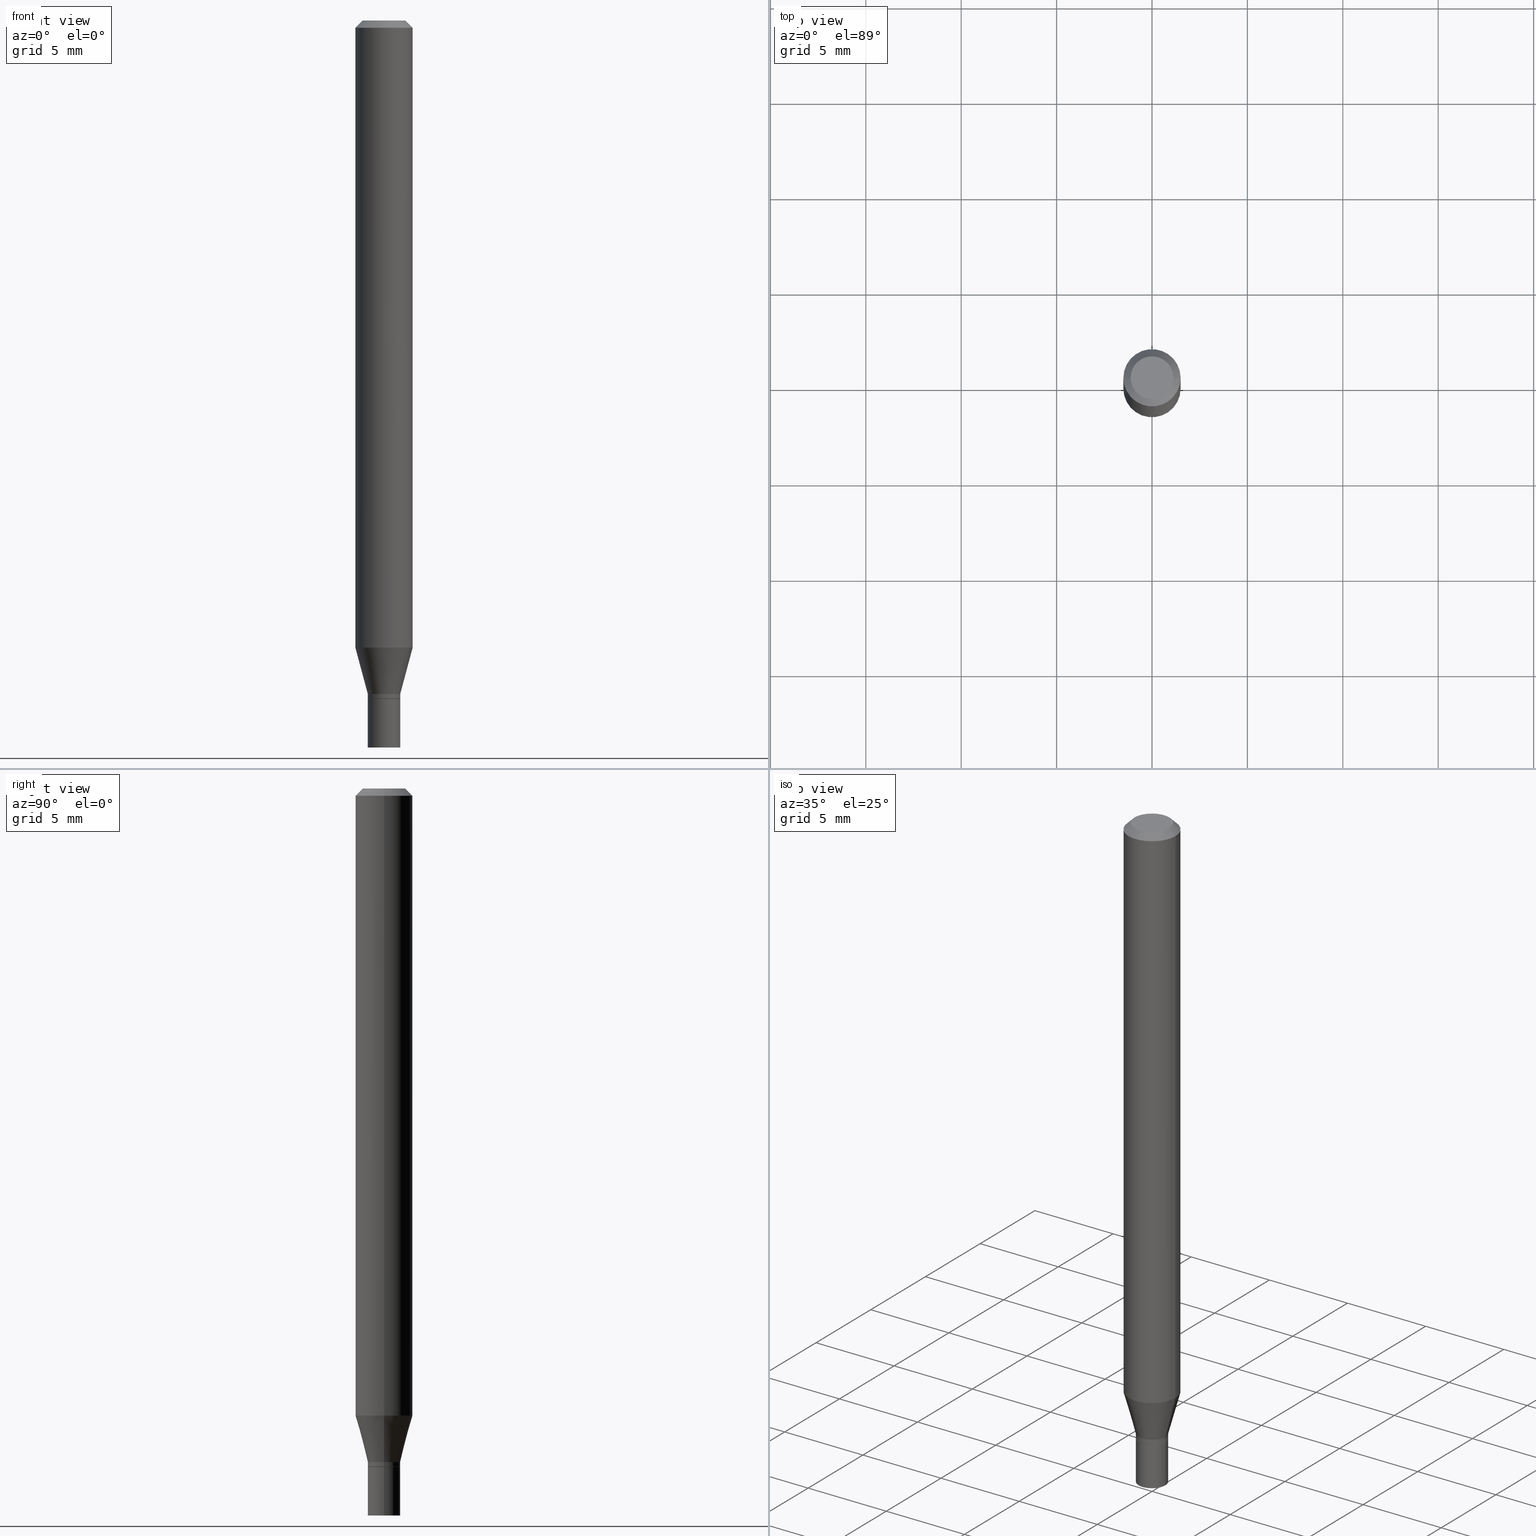
[diagram: canonical four-view strip — front | top / right | iso, engineering-drawing reading convention]
A machine part, canonical four-view strip (front | top / right | iso — engineering-drawing reading convention). The complete STEP part file that produces these views, byte-faithful:
ISO-10303-21;
HEADER;
FILE_DESCRIPTION (( 'STEP AP203' ),
    '1' );
FILE_NAME ('09295.STEP',
    '2024-03-14T18:24:27',
    ( '' ),
    ( '' ),
    'SwSTEP 2.0',
    'SolidWorks 2023',
    '' );
FILE_SCHEMA (( 'CONFIG_CONTROL_DESIGN' ));
ENDSEC;

DATA;
#1 = AXIS2_PLACEMENT_3D ( 'NONE', #96, #168, #463 ) ;
#2 = SECURITY_CLASSIFICATION_LEVEL ( 'unclassified' ) ;
#3 = DIRECTION ( 'NONE',  ( 1.000000000000000000, -6.982962677686273021E-15, 0.000000000000000000 ) ) ;
#4 = DIRECTION ( 'NONE',  ( -2.445468806185136597E-29, 3.491481338843145583E-15, 1.000000000000000000 ) ) ;
#5 = EDGE_CURVE ( 'NONE', #395, #404, #40, .T. ) ;
#6 = APPROVAL_DATE_TIME ( #75, #32 ) ;
#7 = FACE_OUTER_BOUND ( 'NONE', #211, .T. ) ;
#8 = AXIS2_PLACEMENT_3D ( 'NONE', #327, #4, #221 ) ;
#9 = VECTOR ( 'NONE', #447, 39.37007874015748143 ) ;
#10 = EDGE_CURVE ( 'NONE', #417, #196, #193, .T. ) ;
#11 = COORDINATED_UNIVERSAL_TIME_OFFSET ( 5, 0, .BEHIND. ) ;
#12 = DIRECTION ( 'NONE',  ( -2.445468806185136597E-29, 3.491481338843145583E-15, 1.000000000000000000 ) ) ;
#13 = COORDINATED_UNIVERSAL_TIME_OFFSET ( 5, 0, .BEHIND. ) ;
#14 = CARTESIAN_POINT ( 'NONE',  ( 0.000000000000000000, 0.000000000000000000, 0.000000000000000000 ) ) ;
#15 = ORIENTED_EDGE ( 'NONE', *, *, #5, .F. ) ;
#16 = CYLINDRICAL_SURFACE ( 'NONE', #430, 0.05904999999999999832 ) ;
#17 = EDGE_LOOP ( 'NONE', ( #300, #409, #121, #144 ) ) ;
#18 = AXIS2_PLACEMENT_3D ( 'NONE', #396, #77, #265 ) ;
#19 = DIRECTION ( 'NONE',  ( -2.445468806185136597E-29, 3.491481338843145583E-15, 1.000000000000000000 ) ) ;
#20 = PRODUCT_DEFINITION_SHAPE ( 'NONE', 'NONE',  #362 ) ;
#21 = EDGE_CURVE ( 'NONE', #190, #169, #437, .T. ) ;
#22 = FACE_OUTER_BOUND ( 'NONE', #246, .T. ) ;
#23 = ORIENTED_EDGE ( 'NONE', *, *, #170, .T. ) ;
#24 = DIRECTION ( 'NONE',  ( -2.445468806185136877E-29, 3.491481338843145188E-15, 1.000000000000000000 ) ) ;
#25 = EDGE_LOOP ( 'NONE', ( #420, #419 ) ) ;
#26 = EDGE_CURVE ( 'NONE', #274, #416, #400, .T. ) ;
#27 = DIRECTION ( 'NONE',  ( 1.000000000000000000, -6.982962677686265922E-15, 4.876176775795935793E-29 ) ) ;
#28 = ORIENTED_EDGE ( 'NONE', *, *, #179, .T. ) ;
#29 = CARTESIAN_POINT ( 'NONE',  ( -0.03345000000000000057, -4.824273099943039539E-15, -1.500000000000000222 ) ) ;
#30 = ORIENTED_EDGE ( 'NONE', *, *, #21, .F. ) ;
#31 = DIRECTION ( 'NONE',  ( 2.445468806185136597E-29, -3.491481338843145583E-15, -1.000000000000000000 ) ) ;
#32 = APPROVAL ( #436, 'UNSPECIFIED' ) ;
#33 = DIRECTION ( 'NONE',  ( 1.000000000000000000, -6.982962677686265922E-15, 4.876176775795935793E-29 ) ) ;
#34 = AXIS2_PLACEMENT_3D ( 'NONE', #116, #44, #284 ) ;
#35 = ORIENTED_EDGE ( 'NONE', *, *, #99, .F. ) ;
#36 = DIRECTION ( 'NONE',  ( -1.000000000000000000, 6.982962677686265922E-15, -4.876176775795935793E-29 ) ) ;
#37 = DATE_TIME_ROLE ( 'creation_date' ) ;
#38 = DIRECTION ( 'NONE',  ( 1.000000000000000000, -6.982962677686267499E-15, 4.876176775795936353E-29 ) ) ;
#39 = VECTOR ( 'NONE', #100, 39.37007874015748143 ) ;
#40 = CIRCLE ( 'NONE', #113, 0.03345000000000020179 ) ;
#41 = DIRECTION ( 'NONE',  ( 1.000000000000000000, 0.000000000000000000, 0.000000000000000000 ) ) ;
#42 = LINE ( 'NONE', #323, #264 ) ;
#43 = ORIENTED_EDGE ( 'NONE', *, *, #90, .F. ) ;
#44 = DIRECTION ( 'NONE',  ( -2.445468806185136597E-29, 3.491481338843145583E-15, 1.000000000000000000 ) ) ;
#45 = CARTESIAN_POINT ( 'NONE',  ( 0.000000000000000000, 0.000000000000000000, 0.000000000000000000 ) ) ;
#46 = DIRECTION ( 'NONE',  ( 1.000000000000000000, -6.982962677686265133E-15, 0.000000000000000000 ) ) ;
#47 = AXIS2_PLACEMENT_3D ( 'NONE', #66, #162, #314 ) ;
#48 = CALENDAR_DATE ( 2024, 14, 3 ) ;
#49 = CARTESIAN_POINT ( 'NONE',  ( -0.03295000000000000012, -4.652553450411914380E-15, -1.399600000000000177 ) ) ;
#50 = DIRECTION ( 'NONE',  ( 1.000000000000000000, -6.982962677686266711E-15, 0.000000000000000000 ) ) ;
#51 = FACE_OUTER_BOUND ( 'NONE', #17, .T. ) ;
#52 = ORIENTED_EDGE ( 'NONE', *, *, #26, .T. ) ;
#53 =( GEOMETRIC_REPRESENTATION_CONTEXT ( 3 ) GLOBAL_UNCERTAINTY_ASSIGNED_CONTEXT ( ( #94 ) ) GLOBAL_UNIT_ASSIGNED_CONTEXT ( ( #279, #426, #352 ) ) REPRESENTATION_CONTEXT ( 'NONE', 'WORKASPACE' ) );
#54 = LINE ( 'NONE', #195, #305 ) ;
#55 = FACE_OUTER_BOUND ( 'NONE', #336, .T. ) ;
#56 = CC_DESIGN_PERSON_AND_ORGANIZATION_ASSIGNMENT ( #261, #319, ( #268 ) ) ;
#57 = DIRECTION ( 'NONE',  ( -2.445468806185136597E-29, 3.491481338843145583E-15, 1.000000000000000000 ) ) ;
#58 = ORIENTED_EDGE ( 'NONE', *, *, #311, .T. ) ;
#59 = CIRCLE ( 'NONE', #184, 0.05904999999999999832 ) ;
#60 = CARTESIAN_POINT ( 'NONE',  ( 0.05904999999999999832, -4.647161662000212105E-16, -0.01499999999999999944 ) ) ;
#61 = EDGE_LOOP ( 'NONE', ( #356, #341 ) ) ;
#62 = EDGE_CURVE ( 'NONE', #280, #416, #126, .T. ) ;
#63 = EDGE_CURVE ( 'NONE', #83, #92, #232, .T. ) ;
#64 = CARTESIAN_POINT ( 'NONE',  ( 4.935362355770148873E-45, -7.046389437484354328E-31, -2.018166146011560548E-16 ) ) ;
#65 = ORIENTED_EDGE ( 'NONE', *, *, #63, .T. ) ;
#66 = CARTESIAN_POINT ( 'NONE',  ( 3.422678141136717667E-29, -4.886677281844866849E-15, -1.399600000000000177 ) ) ;
#67 = CLOSED_SHELL ( 'NONE', ( #344, #72, #453, #391, #324, #353, #347, #244, #451, #402, #76, #146 ) ) ;
#68 = AXIS2_PLACEMENT_3D ( 'NONE', #194, #338, #267 ) ;
#69 = PLANE ( 'NONE',  #153 ) ;
#70 = CALENDAR_DATE ( 2024, 14, 3 ) ;
#71 = EDGE_LOOP ( 'NONE', ( #438, #461, #401, #220 ) ) ;
#72 = ADVANCED_FACE ( 'NONE', ( #7 ), #349, .T. ) ;
#73 = CARTESIAN_POINT ( 'NONE',  ( 0.05904999999999999832, -4.930528539367636810E-15, -1.294059499326237761 ) ) ;
#74 = CIRCLE ( 'NONE', #34, 0.03345000000000020179 ) ;
#75 = DATE_AND_TIME ( #70, #375 ) ;
#76 = ADVANCED_FACE ( 'NONE', ( #399 ), #358, .T. ) ;
#77 = DIRECTION ( 'NONE',  ( -2.445468806185136597E-29, 3.491481338843145583E-15, 1.000000000000000000 ) ) ;
#78 = LINE ( 'NONE', #406, #176 ) ;
#79 = CARTESIAN_POINT ( 'NONE',  ( 0.03295000000000000012, -5.116765902074629697E-15, -1.399600000000000177 ) ) ;
#80 = AXIS2_PLACEMENT_3D ( 'NONE', #189, #335, #408 ) ;
#81 = CARTESIAN_POINT ( 'NONE',  ( 0.03345000000000000057, -5.470802109833324821E-15, -1.500000000000000222 ) ) ;
#82 = DIRECTION ( 'NONE',  ( -2.438088387897960049E-29, 3.491481338843145188E-15, 1.000000000000000000 ) ) ;
#83 = VERTEX_POINT ( 'NONE', #224 ) ;
#84 = CARTESIAN_POINT ( 'NONE',  ( 0.03345000000000020179, -5.085342570025042633E-15, -1.389600000000000168 ) ) ;
#85 = AXIS2_PLACEMENT_3D ( 'NONE', #149, #332, #359 ) ;
#86 = EDGE_LOOP ( 'NONE', ( #181, #108, #132, #15 ) ) ;
#87 = CC_DESIGN_APPROVAL ( #32, ( #460 ) ) ;
#88 = CARTESIAN_POINT ( 'NONE',  ( 3.398223453074866122E-29, -4.851762468456435200E-15, -1.389600000000000168 ) ) ;
#89 = EDGE_LOOP ( 'NONE', ( #310, #238 ) ) ;
#90 = EDGE_CURVE ( 'NONE', #190, #441, #78, .T. ) ;
#91 = CARTESIAN_POINT ( 'NONE',  ( 0.03345000000000000057, -5.120257383413471916E-15, -1.399599999999999955 ) ) ;
#92 = VERTEX_POINT ( 'NONE', #73 ) ;
#93 = DIRECTION ( 'NONE',  ( 1.000000000000000000, -6.982962677686279332E-15, 0.000000000000000000 ) ) ;
#94 = UNCERTAINTY_MEASURE_WITH_UNIT (LENGTH_MEASURE( 1.000000000000000082E-05 ), #279, 'distance_accuracy_value', 'NONE');
#95 = LOCAL_TIME ( 14, 24, 27.00000000000000000, #11 ) ;
#96 = CARTESIAN_POINT ( 'NONE',  ( 0.000000000000000000, 0.000000000000000000, 0.000000000000000000 ) ) ;
#97 = FACE_OUTER_BOUND ( 'NONE', #360, .T. ) ;
#98 = CARTESIAN_POINT ( 'NONE',  ( 0.000000000000000000, 0.000000000000000000, 0.000000000000000000 ) ) ;
#99 = EDGE_CURVE ( 'NONE', #395, #83, #434, .T. ) ;
#100 = DIRECTION ( 'NONE',  ( -2.445468806185136877E-29, 3.491481338843145188E-15, 1.000000000000000000 ) ) ;
#101 = AXIS2_PLACEMENT_3D ( 'NONE', #191, #127, #230 ) ;
#102 = CC_DESIGN_SECURITY_CLASSIFICATION ( #460, ( #216 ) ) ;
#103 = EDGE_CURVE ( 'NONE', #404, #395, #74, .T. ) ;
#104 = EDGE_CURVE ( 'NONE', #416, #404, #42, .T. ) ;
#105 = DATE_AND_TIME ( #328, #351 ) ;
#106 = LINE ( 'NONE', #217, #208 ) ;
#107 = APPLICATION_PROTOCOL_DEFINITION ( 'international standard', 'config_control_design', 1994, #334 ) ;
#108 = ORIENTED_EDGE ( 'NONE', *, *, #62, .T. ) ;
#109 = CARTESIAN_POINT ( 'NONE',  ( 0.04404999999999999888, -3.798447818264464023E-16, -2.018166146011536389E-16 ) ) ;
#110 = CC_DESIGN_DATE_AND_TIME_ASSIGNMENT ( #141, #293, ( #460 ) ) ;
#111 = AXIS2_PLACEMENT_3D ( 'NONE', #421, #31, #210 ) ;
#112 = ORGANIZATION ( 'UNSPECIFIED', 'UNSPECIFIED', '' ) ;
#113 = AXIS2_PLACEMENT_3D ( 'NONE', #255, #142, #46 ) ;
#114 = PERSON_AND_ORGANIZATION ( #240, #112 ) ;
#115 = DIRECTION ( 'NONE',  ( -2.445468806185136597E-29, 3.491481338843145583E-15, 1.000000000000000000 ) ) ;
#116 = CARTESIAN_POINT ( 'NONE',  ( 3.398223453074866122E-29, -4.851762468456435200E-15, -1.389600000000000168 ) ) ;
#117 = FACE_OUTER_BOUND ( 'NONE', #86, .T. ) ;
#118 = CIRCLE ( 'NONE', #68, 0.03344999999999965362 ) ;
#119 = CC_DESIGN_DATE_AND_TIME_ASSIGNMENT ( #394, #37, ( #362 ) ) ;
#120 = DIRECTION ( 'NONE',  ( -1.000000000000000000, 6.982962677686266711E-15, 0.000000000000000000 ) ) ;
#121 = ORIENTED_EDGE ( 'NONE', *, *, #103, .F. ) ;
#122 = CARTESIAN_POINT ( 'NONE',  ( 2.335801015686397760E-16, 0.03344999999999511558, -1.399599999999999955 ) ) ;
#123 = DIRECTION ( 'NONE',  ( 1.000000000000000000, -6.982962677686273021E-15, 0.000000000000000000 ) ) ;
#124 = CIRCLE ( 'NONE', #329, 0.05904999999999999832 ) ;
#125 = CC_DESIGN_APPROVAL ( #428, ( #216 ) ) ;
#126 = CIRCLE ( 'NONE', #8, 0.03344999999999965362 ) ;
#127 = DIRECTION ( 'NONE',  ( -2.445468806185136597E-29, 3.491481338843145583E-15, 1.000000000000000000 ) ) ;
#128 = ORIENTED_EDGE ( 'NONE', *, *, #272, .T. ) ;
#129 = DIRECTION ( 'NONE',  ( 2.445468806185136597E-29, -3.491481338843145583E-15, -1.000000000000000000 ) ) ;
#130 = CIRCLE ( 'NONE', #80, 0.03345000000000000057 ) ;
#131 = DIRECTION ( 'NONE',  ( -2.445468806185136597E-29, 3.491481338843145583E-15, 1.000000000000000000 ) ) ;
#132 = ORIENTED_EDGE ( 'NONE', *, *, #104, .T. ) ;
#133 = CARTESIAN_POINT ( 'NONE',  ( 3.422678141136717106E-29, -4.886677281844866061E-15, -1.399599999999999955 ) ) ;
#134 = ORIENTED_EDGE ( 'NONE', *, *, #454, .T. ) ;
#135 = CYLINDRICAL_SURFACE ( 'NONE', #1, 0.03345000000000000057 ) ;
#136 = CC_DESIGN_PERSON_AND_ORGANIZATION_ASSIGNMENT ( #283, #148, ( #216 ) ) ;
#137 = CARTESIAN_POINT ( 'NONE',  ( 3.422678141136717106E-29, -4.886677281844866061E-15, -1.399599999999999955 ) ) ;
#138 = CIRCLE ( 'NONE', #318, 0.05904999999999999832 ) ;
#139 = PERSON_AND_ORGANIZATION_ROLE ( 'classification_officer' ) ;
#140 = DIRECTION ( 'NONE',  ( -0.2588190451025209615, 5.211531920934547097E-15, 0.9659258262890682012 ) ) ;
#141 = DATE_AND_TIME ( #256, #95 ) ;
#142 = DIRECTION ( 'NONE',  ( -2.445468806185136597E-29, 3.491481338843145583E-15, 1.000000000000000000 ) ) ;
#143 = APPROVAL_DATE_TIME ( #187, #403 ) ;
#144 = ORIENTED_EDGE ( 'NONE', *, *, #104, .F. ) ;
#145 = CARTESIAN_POINT ( 'NONE',  ( 3.422678141136717667E-29, -4.886677281844866849E-15, -1.399600000000000177 ) ) ;
#146 = ADVANCED_FACE ( 'NONE', ( #117 ), #213, .T. ) ;
#147 = CLOSED_SHELL ( 'NONE', ( #165, #207, #425, #364 ) ) ;
#148 = PERSON_AND_ORGANIZATION_ROLE ( 'creator' ) ;
#149 = CARTESIAN_POINT ( 'NONE',  ( 3.422678141136717667E-29, -4.886677281844866849E-15, -1.399600000000000177 ) ) ;
#150 = DIRECTION ( 'NONE',  ( -2.445468806185136597E-29, 3.491481338843145583E-15, 1.000000000000000000 ) ) ;
#151 = DIMENSIONAL_EXPONENTS ( 1.000000000000000000, 0.000000000000000000, 0.000000000000000000, 0.000000000000000000, 0.000000000000000000, 0.000000000000000000, 0.000000000000000000 ) ;
#152 = CARTESIAN_POINT ( 'NONE',  ( 3.668203209277705088E-31, -5.237222008264718399E-17, -0.01499999999999999944 ) ) ;
#153 = AXIS2_PLACEMENT_3D ( 'NONE', #317, #277, #33 ) ;
#154 = ORIENTED_EDGE ( 'NONE', *, *, #62, .F. ) ;
#155 = PLANE ( 'NONE',  #226 ) ;
#156 = EDGE_CURVE ( 'NONE', #398, #274, #270, .T. ) ;
#157 = DIRECTION ( 'NONE',  ( -1.000000000000000000, 6.982962677686265922E-15, -4.876176775795935793E-29 ) ) ;
#158 = CARTESIAN_POINT ( 'NONE',  ( -0.05904999999999999832, 4.195754854663391478E-16, -2.904631170795521892E-30 ) ) ;
#159 = CONICAL_SURFACE ( 'NONE', #372, 0.05904999999999999832, 0.7853981633974551624 ) ;
#160 = APPROVAL_PERSON_ORGANIZATION ( #114, #403, #225 ) ;
#161 = CARTESIAN_POINT ( 'NONE',  ( 3.576687321579069994E-29, -5.368277968210015545E-15, -1.500000000000000222 ) ) ;
#162 = DIRECTION ( 'NONE',  ( -2.445468806185136597E-29, 3.491481338843145583E-15, 1.000000000000000000 ) ) ;
#163 = ORIENTED_EDGE ( 'NONE', *, *, #63, .F. ) ;
#164 = FACE_OUTER_BOUND ( 'NONE', #89, .T. ) ;
#165 = ADVANCED_FACE ( 'NONE', ( #178 ), #367, .T. ) ;
#166 = ORIENTED_EDGE ( 'NONE', *, *, #303, .T. ) ;
#167 = CIRCLE ( 'NONE', #435, 0.04404999999999999888 ) ;
#168 = DIRECTION ( 'NONE',  ( -2.445468806185136597E-29, 3.491481338843145583E-15, 1.000000000000000000 ) ) ;
#169 = VERTEX_POINT ( 'NONE', #357 ) ;
#170 = EDGE_CURVE ( 'NONE', #398, #280, #295, .T. ) ;
#171 = FACE_OUTER_BOUND ( 'NONE', #445, .T. ) ;
#172 = APPROVAL_ROLE ( '' ) ;
#173 = AXIS2_PLACEMENT_3D ( 'NONE', #292, #150, #227 ) ;
#174 = CC_DESIGN_APPROVAL ( #403, ( #362 ) ) ;
#175 = CARTESIAN_POINT ( 'NONE',  ( 0.05904999999999999832, -4.123439461173740327E-16, 2.879382386107500220E-30 ) ) ;
#176 = VECTOR ( 'NONE', #392, 39.37007874015748143 ) ;
#177 = PERSON_AND_ORGANIZATION_ROLE ( 'design_supplier' ) ;
#178 = FACE_OUTER_BOUND ( 'NONE', #348, .T. ) ;
#179 = EDGE_CURVE ( 'NONE', #92, #441, #188, .T. ) ;
#180 = MECHANICAL_CONTEXT ( 'NONE', #334, 'mechanical' ) ;
#181 = ORIENTED_EDGE ( 'NONE', *, *, #229, .F. ) ;
#182 = DIRECTION ( 'NONE',  ( -2.445468806185136597E-29, 3.491481338843145583E-15, 1.000000000000000000 ) ) ;
#183 = DIRECTION ( 'NONE',  ( 0.000000000000000000, 0.000000000000000000, 1.000000000000000000 ) ) ;
#184 = AXIS2_PLACEMENT_3D ( 'NONE', #340, #234, #123 ) ;
#185 = DIRECTION ( 'NONE',  ( -2.445468806185136597E-29, 3.491481338843145583E-15, 1.000000000000000000 ) ) ;
#186 = EDGE_CURVE ( 'NONE', #169, #385, #106, .T. ) ;
#187 = DATE_AND_TIME ( #219, #209 ) ;
#188 = LINE ( 'NONE', #175, #365 ) ;
#189 = CARTESIAN_POINT ( 'NONE',  ( 3.668203209277704895E-29, -5.237222008264718177E-15, -1.500000000000000222 ) ) ;
#190 = VERTEX_POINT ( 'NONE', #109 ) ;
#191 = CARTESIAN_POINT ( 'NONE',  ( 3.398223453074866122E-29, -4.851762468456435200E-15, -1.389600000000000168 ) ) ;
#192 = CONICAL_SURFACE ( 'NONE', #101, 0.03345000000000020179, 0.2617993877991496299 ) ;
#193 = CIRCLE ( 'NONE', #18, 0.03345000000000000057 ) ;
#194 = CARTESIAN_POINT ( 'NONE',  ( 3.421455406733624865E-29, -4.884931541175446135E-15, -1.399100000000000010 ) ) ;
#195 = CARTESIAN_POINT ( 'NONE',  ( 0.03345000000000000057, -2.335801015686056085E-16, 1.631081131503740528E-30 ) ) ;
#196 = VERTEX_POINT ( 'NONE', #81 ) ;
#197 = ADVANCED_BREP_SHAPE_REPRESENTATION ( '09295', ( #382, #218, #414 ), #53 ) ;
#198 = DIRECTION ( 'NONE',  ( 1.000000000000000000, -6.982962677686267499E-15, 4.876176775795936353E-29 ) ) ;
#199 = ORIENTED_EDGE ( 'NONE', *, *, #288, .T. ) ;
#200 = AXIS2_PLACEMENT_3D ( 'NONE', #133, #383, #247 ) ;
#201 = DIRECTION ( 'NONE',  ( -2.445468806185136597E-29, 3.491481338843145583E-15, 1.000000000000000000 ) ) ;
#202 = CC_DESIGN_PERSON_AND_ORGANIZATION_ASSIGNMENT ( #440, #252, ( #362 ) ) ;
#203 = ORIENTED_EDGE ( 'NONE', *, *, #90, .T. ) ;
#204 = EDGE_CURVE ( 'NONE', #92, #83, #59, .T. ) ;
#205 = APPLICATION_CONTEXT ( 'configuration controlled 3d designs of mechanical parts and assemblies' ) ;
#206 = CARTESIAN_POINT ( 'NONE',  ( -0.05904999999999999832, -1.865702921200115583E-15, -0.01499999999999999944 ) ) ;
#207 = ADVANCED_FACE ( 'NONE', ( #339 ), #376, .F. ) ;
#208 = VECTOR ( 'NONE', #251, 39.37007874015748143 ) ;
#209 = LOCAL_TIME ( 14, 24, 27.00000000000000000, #214 ) ;
#210 = DIRECTION ( 'NONE',  ( -1.000000000000000000, 6.982962677686266711E-15, 0.000000000000000000 ) ) ;
#211 = EDGE_LOOP ( 'NONE', ( #243, #23, #369, #236 ) ) ;
#212 = CARTESIAN_POINT ( 'NONE',  ( 0.03345000000000020179, -5.085342570025042633E-15, -1.389600000000000168 ) ) ;
#213 = CYLINDRICAL_SURFACE ( 'NONE', #422, 0.03344999999999992424 ) ;
#214 = COORDINATED_UNIVERSAL_TIME_OFFSET ( 5, 0, .BEHIND. ) ;
#215 = AXIS2_PLACEMENT_3D ( 'NONE', #439, #115, #433 ) ;
#216 = PRODUCT_DEFINITION_FORMATION_WITH_SPECIFIED_SOURCE ( 'ANY', '', #268, .NOT_KNOWN. ) ;
#217 = CARTESIAN_POINT ( 'NONE',  ( -0.05904999999999999832, 3.599717260347268549E-16, -0.01499999999999999944 ) ) ;
#218 = MANIFOLD_SOLID_BREP ( 'Body-Move/Copy2[2]', #67 ) ;
#219 = CALENDAR_DATE ( 2024, 14, 3 ) ;
#220 = ORIENTED_EDGE ( 'NONE', *, *, #442, .F. ) ;
#221 = DIRECTION ( 'NONE',  ( 1.000000000000000000, -6.982962677686265133E-15, 0.000000000000000000 ) ) ;
#222 = COORDINATED_UNIVERSAL_TIME_OFFSET ( 5, 0, .BEHIND. ) ;
#223 = ORIENTED_EDGE ( 'NONE', *, *, #257, .F. ) ;
#224 = CARTESIAN_POINT ( 'NONE',  ( -0.05904999999999999832, -4.098609107783923974E-15, -1.294059499326237761 ) ) ;
#225 = APPROVAL_ROLE ( '' ) ;
#226 = AXIS2_PLACEMENT_3D ( 'NONE', #122, #231, #157 ) ;
#227 = DIRECTION ( 'NONE',  ( 1.000000000000000000, -6.982962677686264344E-15, 0.000000000000000000 ) ) ;
#228 = CARTESIAN_POINT ( 'NONE',  ( -0.03345000000000000057, -4.824273099943039539E-15, -1.399599999999999955 ) ) ;
#229 = EDGE_CURVE ( 'NONE', #280, #395, #456, .T. ) ;
#230 = DIRECTION ( 'NONE',  ( 1.000000000000000000, -6.982962677686265133E-15, 0.000000000000000000 ) ) ;
#231 = DIRECTION ( 'NONE',  ( 2.438088387897960049E-29, -3.491481338843145188E-15, -1.000000000000000000 ) ) ;
#232 = CIRCLE ( 'NONE', #289, 0.05904999999999999832 ) ;
#233 = ORIENTED_EDGE ( 'NONE', *, *, #170, .F. ) ;
#234 = DIRECTION ( 'NONE',  ( -2.445468806185136597E-29, 3.491481338843145583E-15, 1.000000000000000000 ) ) ;
#235 = DIRECTION ( 'NONE',  ( 1.000000000000000000, -6.982962677686266711E-15, 4.876176775795936353E-29 ) ) ;
#236 = ORIENTED_EDGE ( 'NONE', *, *, #26, .F. ) ;
#237 = FACE_OUTER_BOUND ( 'NONE', #71, .T. ) ;
#238 = ORIENTED_EDGE ( 'NONE', *, *, #21, .T. ) ;
#239 = CIRCLE ( 'NONE', #47, 0.03295000000000000012 ) ;
#240 = PERSON ( 'UNSPECIFIED', 'UNSPECIFIED', 'UNSPECIFIED', ('UNSPECIFIED'), ('UNSPECIFIED'), ('UNSPECIFIED') ) ;
#241 = AXIS2_PLACEMENT_3D ( 'NONE', #287, #12, #363 ) ;
#242 = DIRECTION ( 'NONE',  ( 1.000000000000000000, -6.982962677686266711E-15, 4.876176775795936353E-29 ) ) ;
#243 = ORIENTED_EDGE ( 'NONE', *, *, #397, .T. ) ;
#244 = ADVANCED_FACE ( 'NONE', ( #55 ), #159, .T. ) ;
#245 = CARTESIAN_POINT ( 'NONE',  ( 3.075995059520799729E-16, 0.04404999999999999888, -2.547080602766185685E-16 ) ) ;
#246 = EDGE_LOOP ( 'NONE', ( #297, #412, #313, #309 ) ) ;
#247 = DIRECTION ( 'NONE',  ( 1.000000000000000000, -6.982962677686279332E-15, 0.000000000000000000 ) ) ;
#248 = AXIS2_PLACEMENT_3D ( 'NONE', #98, #131, #242 ) ;
#249 = APPROVAL_PERSON_ORGANIZATION ( #331, #428, #172 ) ;
#250 = PERSON_AND_ORGANIZATION ( #240, #112 ) ;
#251 = DIRECTION ( 'NONE',  ( -0.7071067811865523467, 2.468850131082307548E-15, -0.7071067811865426878 ) ) ;
#252 = PERSON_AND_ORGANIZATION_ROLE ( 'creator' ) ;
#253 = CIRCLE ( 'NONE', #388, 0.03345000000000000057 ) ;
#254 = EDGE_LOOP ( 'NONE', ( #424, #65, #28, #384 ) ) ;
#255 = CARTESIAN_POINT ( 'NONE',  ( 3.398223453074866122E-29, -4.851762468456435200E-15, -1.389600000000000168 ) ) ;
#256 = CALENDAR_DATE ( 2024, 14, 3 ) ;
#257 = EDGE_CURVE ( 'NONE', #196, #326, #54, .T. ) ;
#258 = EDGE_LOOP ( 'NONE', ( #233, #343, #52, #154 ) ) ;
#259 = DIRECTION ( 'NONE',  ( 0.7071067811861793118, -2.468850131078399925E-15, 0.7071067811869157227 ) ) ;
#260 = CC_DESIGN_PERSON_AND_ORGANIZATION_ASSIGNMENT ( #355, #177, ( #216 ) ) ;
#261 = PERSON_AND_ORGANIZATION ( #240, #112 ) ;
#262 = DIRECTION ( 'NONE',  ( -2.445468806185136877E-29, 3.491481338843145188E-15, 1.000000000000000000 ) ) ;
#263 = EDGE_CURVE ( 'NONE', #416, #280, #118, .T. ) ;
#264 = VECTOR ( 'NONE', #262, 39.37007874015748143 ) ;
#265 = DIRECTION ( 'NONE',  ( 1.000000000000000000, -6.982962677686279332E-15, 0.000000000000000000 ) ) ;
#266 = CARTESIAN_POINT ( 'NONE',  ( 3.668203209277705088E-31, -5.237222008264718399E-17, -0.01499999999999999944 ) ) ;
#267 = DIRECTION ( 'NONE',  ( 1.000000000000000000, -6.982962677686265133E-15, 0.000000000000000000 ) ) ;
#268 = PRODUCT ( '09295', '09295', '', ( #180 ) ) ;
#269 = FACE_OUTER_BOUND ( 'NONE', #254, .T. ) ;
#270 = CIRCLE ( 'NONE', #173, 0.03295000000000000012 ) ;
#271 = CYLINDRICAL_SURFACE ( 'NONE', #389, 0.03344999999999992424 ) ;
#272 = EDGE_CURVE ( 'NONE', #441, #385, #138, .T. ) ;
#273 = CARTESIAN_POINT ( 'NONE',  ( 0.03295000000000000012, -5.116765902074629697E-15, -1.399600000000000177 ) ) ;
#274 = VERTEX_POINT ( 'NONE', #273 ) ;
#275 = EDGE_LOOP ( 'NONE', ( #35, #306, #199, #163 ) ) ;
#276 = VECTOR ( 'NONE', #140, 39.37007874015748143 ) ;
#277 = DIRECTION ( 'NONE',  ( -2.438088387897960049E-29, 3.491481338843145188E-15, 1.000000000000000000 ) ) ;
#278 = ORIENTED_EDGE ( 'NONE', *, *, #186, .F. ) ;
#279 =( CONVERSION_BASED_UNIT ( 'INCH', #458 ) LENGTH_UNIT ( ) NAMED_UNIT ( #151 ) );
#280 = VERTEX_POINT ( 'NONE', #308 ) ;
#281 = CARTESIAN_POINT ( 'NONE',  ( -0.03345000000000000057, 2.376765451117535162E-16, -1.645383787690265928E-30 ) ) ;
#282 = VECTOR ( 'NONE', #342, 39.37007874015748143 ) ;
#283 = PERSON_AND_ORGANIZATION ( #240, #112 ) ;
#284 = DIRECTION ( 'NONE',  ( 1.000000000000000000, -6.982962677686265133E-15, 0.000000000000000000 ) ) ;
#285 = EDGE_CURVE ( 'NONE', #83, #385, #368, .T. ) ;
#286 = APPROVAL_STATUS ( 'not_yet_approved' ) ;
#287 = CARTESIAN_POINT ( 'NONE',  ( 4.935362355770148873E-45, -7.046389437484354328E-31, -2.018166146011560548E-16 ) ) ;
#288 = EDGE_CURVE ( 'NONE', #404, #92, #304, .T. ) ;
#289 = AXIS2_PLACEMENT_3D ( 'NONE', #294, #330, #3 ) ;
#290 = APPROVAL_DATE_TIME ( #105, #428 ) ;
#291 = AXIS2_PLACEMENT_3D ( 'NONE', #245, #466, #36 ) ;
#292 = CARTESIAN_POINT ( 'NONE',  ( 3.422678141136717667E-29, -4.886677281844866849E-15, -1.399600000000000177 ) ) ;
#293 = DATE_TIME_ROLE ( 'classification_date' ) ;
#294 = CARTESIAN_POINT ( 'NONE',  ( 3.164582138949869656E-29, -4.518184593250262678E-15, -1.294059499326237761 ) ) ;
#295 = LINE ( 'NONE', #49, #379 ) ;
#296 = VERTEX_POINT ( 'NONE', #228 ) ;
#297 = ORIENTED_EDGE ( 'NONE', *, *, #103, .T. ) ;
#298 = CONICAL_SURFACE ( 'NONE', #111, 0.05904999999999999832, 0.7853981633974551624 ) ;
#299 = CARTESIAN_POINT ( 'NONE',  ( -0.03344999999999992424, 2.376765451117529739E-16, -1.645383787690262425E-30 ) ) ;
#300 = ORIENTED_EDGE ( 'NONE', *, *, #263, .T. ) ;
#301 = CARTESIAN_POINT ( 'NONE',  ( 0.000000000000000000, 0.000000000000000000, 0.000000000000000000 ) ) ;
#302 = DIRECTION ( 'NONE',  ( -2.445468806185136597E-29, 3.491481338843145583E-15, 1.000000000000000000 ) ) ;
#303 = EDGE_CURVE ( 'NONE', #385, #441, #124, .T. ) ;
#304 = LINE ( 'NONE', #84, #9 ) ;
#305 = VECTOR ( 'NONE', #24, 39.37007874015748143 ) ;
#306 = ORIENTED_EDGE ( 'NONE', *, *, #5, .T. ) ;
#307 = APPROVAL_PERSON_ORGANIZATION ( #250, #32, #390 ) ;
#308 = CARTESIAN_POINT ( 'NONE',  ( -0.03344999999999965362, -4.647254996063694344E-15, -1.399100000000000010 ) ) ;
#309 = ORIENTED_EDGE ( 'NONE', *, *, #288, .F. ) ;
#310 = ORIENTED_EDGE ( 'NONE', *, *, #462, .T. ) ;
#311 = EDGE_CURVE ( 'NONE', #196, #417, #130, .T. ) ;
#312 =( LENGTH_UNIT ( ) NAMED_UNIT ( * ) SI_UNIT ( $, .METRE. ) );
#313 = ORIENTED_EDGE ( 'NONE', *, *, #204, .F. ) ;
#314 = DIRECTION ( 'NONE',  ( 1.000000000000000000, -6.982962677686264344E-15, 0.000000000000000000 ) ) ;
#315 = ORIENTED_EDGE ( 'NONE', *, *, #204, .T. ) ;
#316 = CARTESIAN_POINT ( 'NONE',  ( 0.03344999999999965362, -5.118511642744048045E-15, -1.399100000000000010 ) ) ;
#317 = CARTESIAN_POINT ( 'NONE',  ( 3.422678141136717106E-29, -4.886677281844866061E-15, -1.399599999999999955 ) ) ;
#318 = AXIS2_PLACEMENT_3D ( 'NONE', #152, #302, #373 ) ;
#319 = PERSON_AND_ORGANIZATION_ROLE ( 'design_owner' ) ;
#320 = VECTOR ( 'NONE', #259, 39.37007874015748143 ) ;
#321 = DIRECTION ( 'NONE',  ( -2.445468806185136877E-29, 3.491481338843145188E-15, 1.000000000000000000 ) ) ;
#322 = SHAPE_DEFINITION_REPRESENTATION ( #20, #197 ) ;
#323 = CARTESIAN_POINT ( 'NONE',  ( 0.03344999999999992424, -2.335801015686051154E-16, 1.631081131503737025E-30 ) ) ;
#324 = ADVANCED_FACE ( 'NONE', ( #22 ), #192, .T. ) ;
#325 = APPROVAL_STATUS ( 'not_yet_approved' ) ;
#326 = VERTEX_POINT ( 'NONE', #91 ) ;
#327 = CARTESIAN_POINT ( 'NONE',  ( 3.421455406733624865E-29, -4.884931541175446135E-15, -1.399100000000000010 ) ) ;
#328 = CALENDAR_DATE ( 2024, 14, 3 ) ;
#329 = AXIS2_PLACEMENT_3D ( 'NONE', #266, #455, #50 ) ;
#330 = DIRECTION ( 'NONE',  ( -2.445468806185136597E-29, 3.491481338843145583E-15, 1.000000000000000000 ) ) ;
#331 = PERSON_AND_ORGANIZATION ( #240, #112 ) ;
#332 = DIRECTION ( 'NONE',  ( -2.445468806185136597E-29, 3.491481338843145583E-15, 1.000000000000000000 ) ) ;
#333 = ORIENTED_EDGE ( 'NONE', *, *, #285, .T. ) ;
#334 = APPLICATION_CONTEXT ( 'configuration controlled 3d designs of mechanical parts and assemblies' ) ;
#335 = DIRECTION ( 'NONE',  ( -2.445468806185136597E-29, 3.491481338843145583E-15, 1.000000000000000000 ) ) ;
#336 = EDGE_LOOP ( 'NONE', ( #43, #448, #427, #166 ) ) ;
#337 = AXIS2_PLACEMENT_3D ( 'NONE', #161, #82, #27 ) ;
#338 = DIRECTION ( 'NONE',  ( -2.445468806185136597E-29, 3.491481338843145583E-15, 1.000000000000000000 ) ) ;
#339 = FACE_OUTER_BOUND ( 'NONE', #61, .T. ) ;
#340 = CARTESIAN_POINT ( 'NONE',  ( 3.164582138949869656E-29, -4.518184593250262678E-15, -1.294059499326237761 ) ) ;
#341 = ORIENTED_EDGE ( 'NONE', *, *, #10, .F. ) ;
#342 = DIRECTION ( 'NONE',  ( -2.445468806185136877E-29, 3.491481338843145188E-15, 1.000000000000000000 ) ) ;
#343 = ORIENTED_EDGE ( 'NONE', *, *, #156, .T. ) ;
#344 = ADVANCED_FACE ( 'NONE', ( #51 ), #271, .T. ) ;
#345 = ORIENTED_EDGE ( 'NONE', *, *, #156, .F. ) ;
#346 = CYLINDRICAL_SURFACE ( 'NONE', #248, 0.05904999999999999832 ) ;
#347 = ADVANCED_FACE ( 'NONE', ( #269 ), #16, .T. ) ;
#348 = EDGE_LOOP ( 'NONE', ( #58, #134, #464, #223 ) ) ;
#349 = CONICAL_SURFACE ( 'NONE', #381, 0.03295000000000000012, 0.7853981633969275844 ) ;
#350 = CIRCLE ( 'NONE', #200, 0.03345000000000000057 ) ;
#351 = LOCAL_TIME ( 14, 24, 27.00000000000000000, #13 ) ;
#352 =( NAMED_UNIT ( * ) SI_UNIT ( $, .STERADIAN. ) SOLID_ANGLE_UNIT ( ) );
#353 = ADVANCED_FACE ( 'NONE', ( #377 ), #446, .T. ) ;
#354 = CARTESIAN_POINT ( 'NONE',  ( -0.03295000000000000012, -4.649904223237803968E-15, -1.399600000000000177 ) ) ;
#355 = PERSON_AND_ORGANIZATION ( #240, #112 ) ;
#356 = ORIENTED_EDGE ( 'NONE', *, *, #311, .F. ) ;
#357 = CARTESIAN_POINT ( 'NONE',  ( -0.04404999999999999888, 3.337856159934031180E-16, -2.018166146011582981E-16 ) ) ;
#358 = CONICAL_SURFACE ( 'NONE', #85, 0.03295000000000000012, 0.7853981633969275844 ) ;
#359 = DIRECTION ( 'NONE',  ( 1.000000000000000000, -6.982962677686264344E-15, 0.000000000000000000 ) ) ;
#360 = EDGE_LOOP ( 'NONE', ( #457, #345 ) ) ;
#361 = DIRECTION ( 'NONE',  ( 1.000000000000000000, -6.982962677686264344E-15, 0.000000000000000000 ) ) ;
#362 = PRODUCT_DEFINITION ( 'UNKNOWN', '', #216, #407 ) ;
#363 = DIRECTION ( 'NONE',  ( 1.000000000000000000, -6.982962677686265922E-15, 4.888540261209747396E-29 ) ) ;
#364 = ADVANCED_FACE ( 'NONE', ( #370 ), #155, .F. ) ;
#365 = VECTOR ( 'NONE', #321, 39.37007874015748143 ) ;
#366 = COORDINATED_UNIVERSAL_TIME_OFFSET ( 5, 0, .BEHIND. ) ;
#367 = CYLINDRICAL_SURFACE ( 'NONE', #215, 0.03345000000000000057 ) ;
#368 = LINE ( 'NONE', #158, #393 ) ;
#369 = ORIENTED_EDGE ( 'NONE', *, *, #263, .F. ) ;
#370 = FACE_OUTER_BOUND ( 'NONE', #25, .T. ) ;
#371 = ORIENTED_EDGE ( 'NONE', *, *, #272, .F. ) ;
#372 = AXIS2_PLACEMENT_3D ( 'NONE', #452, #129, #120 ) ;
#373 = DIRECTION ( 'NONE',  ( 1.000000000000000000, -6.982962677686266711E-15, 0.000000000000000000 ) ) ;
#374 = EDGE_CURVE ( 'NONE', #326, #296, #253, .T. ) ;
#375 = LOCAL_TIME ( 14, 24, 27.00000000000000000, #222 ) ;
#376 = PLANE ( 'NONE',  #337 ) ;
#377 = FACE_OUTER_BOUND ( 'NONE', #275, .T. ) ;
#378 = LINE ( 'NONE', #281, #39 ) ;
#379 = VECTOR ( 'NONE', #444, 39.37007874015748143 ) ;
#380 = LOCAL_TIME ( 14, 24, 27.00000000000000000, #366 ) ;
#381 = AXIS2_PLACEMENT_3D ( 'NONE', #145, #185, #361 ) ;
#382 = MANIFOLD_SOLID_BREP ( 'Body-Move/Copy2[1]', #147 ) ;
#383 = DIRECTION ( 'NONE',  ( -2.445468806185136597E-29, 3.491481338843145583E-15, 1.000000000000000000 ) ) ;
#384 = ORIENTED_EDGE ( 'NONE', *, *, #303, .F. ) ;
#385 = VERTEX_POINT ( 'NONE', #206 ) ;
#386 = DIRECTION ( 'NONE',  ( 1.000000000000000000, -6.982962677686265922E-15, 4.888540261209747396E-29 ) ) ;
#387 = EDGE_LOOP ( 'NONE', ( #315, #333, #371, #459 ) ) ;
#388 = AXIS2_PLACEMENT_3D ( 'NONE', #137, #418, #93 ) ;
#389 = AXIS2_PLACEMENT_3D ( 'NONE', #410, #415, #198 ) ;
#390 = APPROVAL_ROLE ( '' ) ;
#391 = ADVANCED_FACE ( 'NONE', ( #465 ), #346, .T. ) ;
#392 = DIRECTION ( 'NONE',  ( 0.7071067811865523467, -7.319954787623271823E-15, -0.7071067811865426878 ) ) ;
#393 = VECTOR ( 'NONE', #413, 39.37007874015748143 ) ;
#394 = DATE_AND_TIME ( #48, #380 ) ;
#395 = VERTEX_POINT ( 'NONE', #429 ) ;
#396 = CARTESIAN_POINT ( 'NONE',  ( 3.668203209277704895E-29, -5.237222008264718177E-15, -1.500000000000000222 ) ) ;
#397 = EDGE_CURVE ( 'NONE', #274, #398, #239, .T. ) ;
#398 = VERTEX_POINT ( 'NONE', #354 ) ;
#399 = FACE_OUTER_BOUND ( 'NONE', #258, .T. ) ;
#400 = LINE ( 'NONE', #79, #320 ) ;
#401 = ORIENTED_EDGE ( 'NONE', *, *, #257, .T. ) ;
#402 = ADVANCED_FACE ( 'NONE', ( #97 ), #69, .F. ) ;
#403 = APPROVAL ( #286, 'UNSPECIFIED' ) ;
#404 = VERTEX_POINT ( 'NONE', #212 ) ;
#405 = AXIS2_PLACEMENT_3D ( 'NONE', #88, #57, #450 ) ;
#406 = CARTESIAN_POINT ( 'NONE',  ( 0.05904999999999999832, -4.574846268510561447E-16, -0.01499999999999999944 ) ) ;
#407 = DESIGN_CONTEXT ( 'detailed design', #205, 'design' ) ;
#408 = DIRECTION ( 'NONE',  ( 1.000000000000000000, -6.982962677686279332E-15, 0.000000000000000000 ) ) ;
#409 = ORIENTED_EDGE ( 'NONE', *, *, #229, .T. ) ;
#410 = CARTESIAN_POINT ( 'NONE',  ( 0.000000000000000000, 0.000000000000000000, 0.000000000000000000 ) ) ;
#411 = PRODUCT_RELATED_PRODUCT_CATEGORY ( 'detail', '', ( #268 ) ) ;
#412 = ORIENTED_EDGE ( 'NONE', *, *, #99, .T. ) ;
#413 = DIRECTION ( 'NONE',  ( -2.445468806185136877E-29, 3.491481338843145188E-15, 1.000000000000000000 ) ) ;
#414 = AXIS2_PLACEMENT_3D ( 'NONE', #45, #183, #41 ) ;
#415 = DIRECTION ( 'NONE',  ( -2.445468806185136597E-29, 3.491481338843145583E-15, 1.000000000000000000 ) ) ;
#416 = VERTEX_POINT ( 'NONE', #316 ) ;
#417 = VERTEX_POINT ( 'NONE', #29 ) ;
#418 = DIRECTION ( 'NONE',  ( -2.445468806185136597E-29, 3.491481338843145583E-15, 1.000000000000000000 ) ) ;
#419 = ORIENTED_EDGE ( 'NONE', *, *, #442, .T. ) ;
#420 = ORIENTED_EDGE ( 'NONE', *, *, #374, .T. ) ;
#421 = CARTESIAN_POINT ( 'NONE',  ( 3.668203209277705088E-31, -5.237222008264718399E-17, -0.01499999999999999944 ) ) ;
#422 = AXIS2_PLACEMENT_3D ( 'NONE', #14, #182, #38 ) ;
#423 = PLANE ( 'NONE',  #291 ) ;
#424 = ORIENTED_EDGE ( 'NONE', *, *, #285, .F. ) ;
#425 = ADVANCED_FACE ( 'NONE', ( #237 ), #135, .T. ) ;
#426 =( NAMED_UNIT ( * ) PLANE_ANGLE_UNIT ( ) SI_UNIT ( $, .RADIAN. ) );
#427 = ORIENTED_EDGE ( 'NONE', *, *, #186, .T. ) ;
#428 = APPROVAL ( #325, 'UNSPECIFIED' ) ;
#429 = CARTESIAN_POINT ( 'NONE',  ( -0.03345000000000020179, -4.356347515564302509E-15, -1.389600000000000168 ) ) ;
#430 = AXIS2_PLACEMENT_3D ( 'NONE', #301, #19, #235 ) ;
#431 = PERSON_AND_ORGANIZATION ( #240, #112 ) ;
#432 = APPLICATION_PROTOCOL_DEFINITION ( 'international standard', 'config_control_design', 1994, #205 ) ;
#433 = DIRECTION ( 'NONE',  ( 1.000000000000000000, -6.982962677686265922E-15, 4.876176775795935793E-29 ) ) ;
#434 = LINE ( 'NONE', #443, #276 ) ;
#435 = AXIS2_PLACEMENT_3D ( 'NONE', #64, #201, #386 ) ;
#436 = APPROVAL_STATUS ( 'not_yet_approved' ) ;
#437 = CIRCLE ( 'NONE', #241, 0.04404999999999999888 ) ;
#438 = ORIENTED_EDGE ( 'NONE', *, *, #454, .F. ) ;
#439 = CARTESIAN_POINT ( 'NONE',  ( 0.000000000000000000, 0.000000000000000000, 0.000000000000000000 ) ) ;
#440 = PERSON_AND_ORGANIZATION ( #240, #112 ) ;
#441 = VERTEX_POINT ( 'NONE', #60 ) ;
#442 = EDGE_CURVE ( 'NONE', #296, #326, #350, .T. ) ;
#443 = CARTESIAN_POINT ( 'NONE',  ( -0.03345000000000020179, -4.614085923344681043E-15, -1.389600000000000168 ) ) ;
#444 = DIRECTION ( 'NONE',  ( -0.7071067811861793118, 7.493145998869024141E-15, 0.7071067811869157227 ) ) ;
#445 = EDGE_LOOP ( 'NONE', ( #30, #203, #128, #278 ) ) ;
#446 = CONICAL_SURFACE ( 'NONE', #405, 0.03345000000000020179, 0.2617993877991496299 ) ;
#447 = DIRECTION ( 'NONE',  ( 0.2588190451025209615, 1.565188264969624926E-15, 0.9659258262890682012 ) ) ;
#448 = ORIENTED_EDGE ( 'NONE', *, *, #462, .F. ) ;
#449 = CC_DESIGN_PERSON_AND_ORGANIZATION_ASSIGNMENT ( #431, #139, ( #460 ) ) ;
#450 = DIRECTION ( 'NONE',  ( 1.000000000000000000, -6.982962677686265133E-15, 0.000000000000000000 ) ) ;
#451 = ADVANCED_FACE ( 'NONE', ( #164 ), #423, .F. ) ;
#452 = CARTESIAN_POINT ( 'NONE',  ( 3.668203209277705088E-31, -5.237222008264718399E-17, -0.01499999999999999944 ) ) ;
#453 = ADVANCED_FACE ( 'NONE', ( #171 ), #298, .T. ) ;
#454 = EDGE_CURVE ( 'NONE', #417, #296, #378, .T. ) ;
#455 = DIRECTION ( 'NONE',  ( -2.445468806185136597E-29, 3.491481338843145583E-15, 1.000000000000000000 ) ) ;
#456 = LINE ( 'NONE', #299, #282 ) ;
#457 = ORIENTED_EDGE ( 'NONE', *, *, #397, .F. ) ;
#458 = LENGTH_MEASURE_WITH_UNIT ( LENGTH_MEASURE( 0.02539999999999999897 ), #312 );
#459 = ORIENTED_EDGE ( 'NONE', *, *, #179, .F. ) ;
#460 = SECURITY_CLASSIFICATION ( '', '', #2 ) ;
#461 = ORIENTED_EDGE ( 'NONE', *, *, #10, .T. ) ;
#462 = EDGE_CURVE ( 'NONE', #169, #190, #167, .T. ) ;
#463 = DIRECTION ( 'NONE',  ( 1.000000000000000000, -6.982962677686265922E-15, 4.876176775795935793E-29 ) ) ;
#464 = ORIENTED_EDGE ( 'NONE', *, *, #374, .F. ) ;
#465 = FACE_OUTER_BOUND ( 'NONE', #387, .T. ) ;
#466 = DIRECTION ( 'NONE',  ( 2.438088387897960049E-29, -3.491481338843145188E-15, -1.000000000000000000 ) ) ;
ENDSEC;
END-ISO-10303-21;
